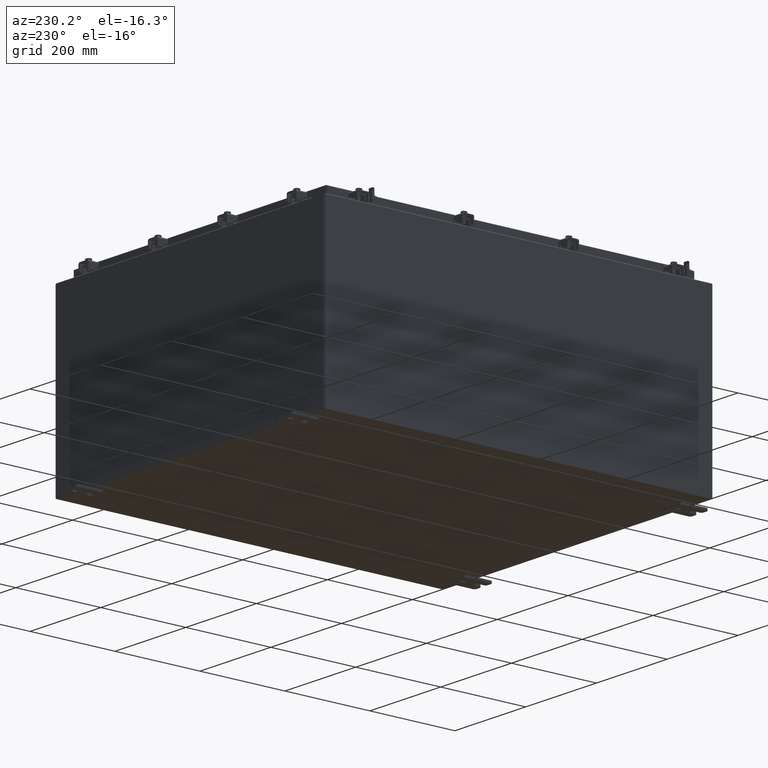
[diagram: clean part render]
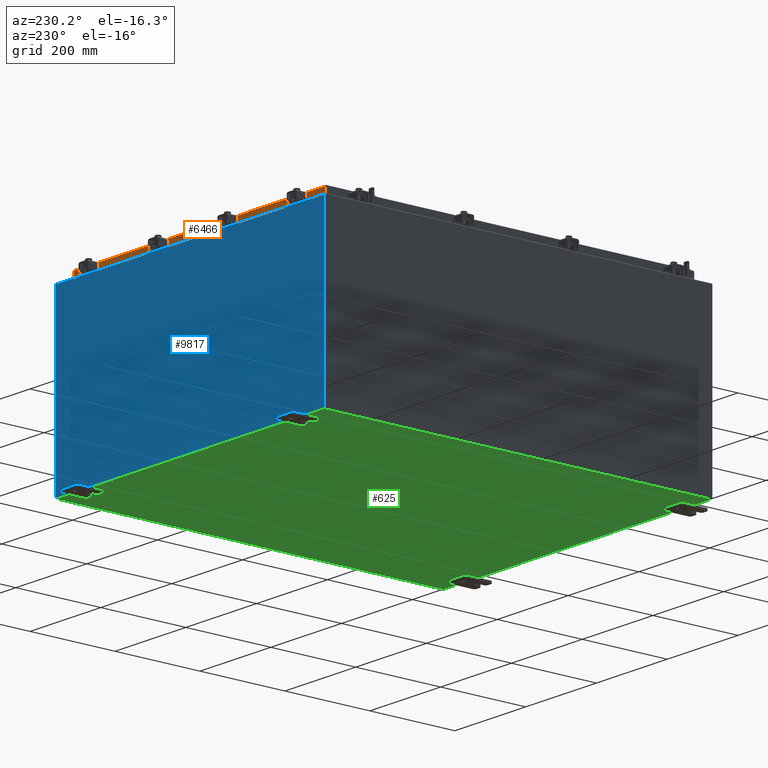
[diagram: same view with three faces highlighted in distinct colors, each labeled with its STEP entity id]
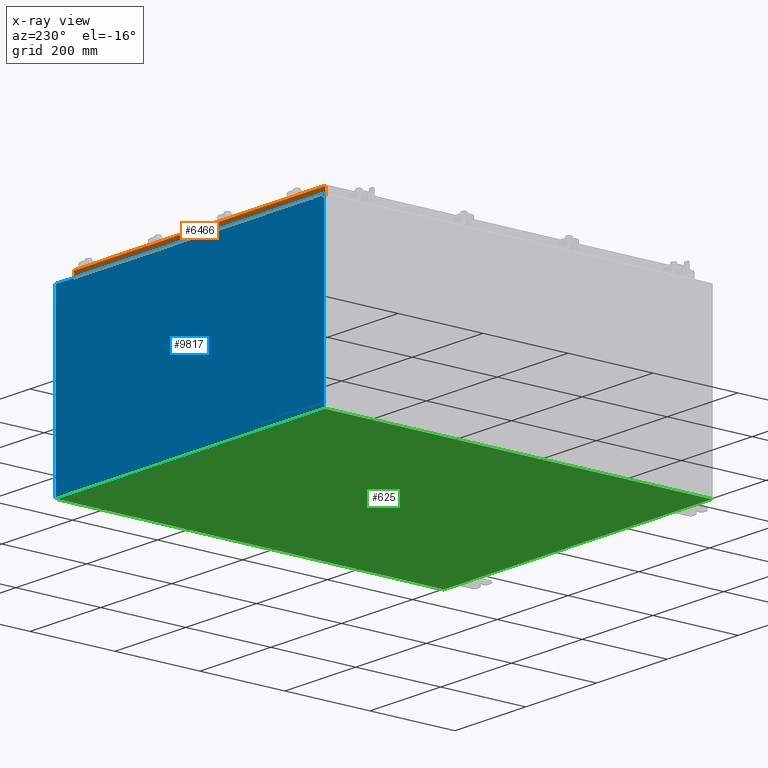
[diagram: x-ray of the same camera — body ghosted, the three highlighted faces saturated]
A machine part, auxiliary view with three faces highlighted in distinct colors.
The next image is the same camera in x-ray (body ghosted, the three faces saturated) — at least one of them is partly hidden behind the body in this view.
Their STEP definitions:

[orange] entity #6466 — the highlighted planar face has unit normal (0, -1, -0).
#280 = VECTOR ( 'NONE', #11008, 39.37007874015748100 ) ;
#816 = AXIS2_PLACEMENT_3D ( 'NONE', #23929, #10814, #24015 ) ;
#1014 = VERTEX_POINT ( 'NONE', #15268 ) ;
#1299 = ORIENTED_EDGE ( 'NONE', *, *, #14997, .F. ) ;
#1421 = CARTESIAN_POINT ( 'NONE',  ( -13.98915786437626700, 17.09399999999999800, -0.08769999999999897300 ) ) ;
#2366 = VECTOR ( 'NONE', #4220, 39.37007874015748100 ) ;
#2660 = EDGE_LOOP ( 'NONE', ( #5427, #9825, #15352, #12015, #10786, #1299 ) ) ;
#3155 = VECTOR ( 'NONE', #19364, 39.37007874015748100 ) ;
#4220 = DIRECTION ( 'NONE',  ( 0.0000000000000000000, 2.818880942772347100E-015, -1.000000000000000000 ) ) ;
#5427 = ORIENTED_EDGE ( 'NONE', *, *, #18040, .F. ) ;
#5476 = VERTEX_POINT ( 'NONE', #24291 ) ;
#6106 = CARTESIAN_POINT ( 'NONE',  ( -14.07799999999999800, 17.09399999999999800, -0.08770000000000007000 ) ) ;
#6466 = ADVANCED_FACE ( 'NONE', ( #14833 ), #16415, .F. ) ;
#6480 = VERTEX_POINT ( 'NONE', #1421 ) ;
#6837 = DIRECTION ( 'NONE',  ( 1.000000000000000000, -0.0000000000000000000, -0.0000000000000000000 ) ) ;
#7252 = CARTESIAN_POINT ( 'NONE',  ( 13.98915786437626500, 17.09399999999999800, -0.08769999999999787700 ) ) ;
#7421 = CARTESIAN_POINT ( 'NONE',  ( -13.23915786437626400, 17.09399999999999800, -0.8500000000000040900 ) ) ;
#7727 = EDGE_CURVE ( 'NONE', #12724, #16868, #23325, .T. ) ;
#7980 = VECTOR ( 'NONE', #19384, 39.37007874015748100 ) ;
#8035 = CARTESIAN_POINT ( 'NONE',  ( 13.98915786437626700, 17.09399999999999800, 4.844676449176206800E-014 ) ) ;
#8809 = LINE ( 'NONE', #6106, #3155 ) ;
#9825 = ORIENTED_EDGE ( 'NONE', *, *, #14541, .T. ) ;
#9967 = CARTESIAN_POINT ( 'NONE',  ( -14.07799999999999800, 17.09399999999999800, -0.8500000000000032000 ) ) ;
#10786 = ORIENTED_EDGE ( 'NONE', *, *, #23349, .F. ) ;
#10814 = DIRECTION ( 'NONE',  ( 3.555540745226020900E-031, -1.000000000000000000, -2.818880942772347100E-015 ) ) ;
#11008 = DIRECTION ( 'NONE',  ( -0.0000000000000000000, 2.818880942772347100E-015, -1.000000000000000000 ) ) ;
#11077 = LINE ( 'NONE', #18968, #21121 ) ;
#12015 = ORIENTED_EDGE ( 'NONE', *, *, #7727, .F. ) ;
#12032 = EDGE_CURVE ( 'NONE', #16868, #1014, #11077, .T. ) ;
#12397 = CARTESIAN_POINT ( 'NONE',  ( 13.23915786437625100, 17.09399999999999800, -0.8500000000000040900 ) ) ;
#12467 = LINE ( 'NONE', #8035, #2366 ) ;
#12724 = VERTEX_POINT ( 'NONE', #7421 ) ;
#13298 = VECTOR ( 'NONE', #6837, 39.37007874015748100 ) ;
#13526 = VERTEX_POINT ( 'NONE', #7252 ) ;
#14541 = EDGE_CURVE ( 'NONE', #13526, #1014, #12467, .T. ) ;
#14833 = FACE_OUTER_BOUND ( 'NONE', #2660, .T. ) ;
#14997 = EDGE_CURVE ( 'NONE', #6480, #5476, #20416, .T. ) ;
#15268 = CARTESIAN_POINT ( 'NONE',  ( 13.98915786437626500, 17.09399999999999800, -0.8499999999999996400 ) ) ;
#15352 = ORIENTED_EDGE ( 'NONE', *, *, #12032, .F. ) ;
#16415 = PLANE ( 'NONE',  #816 ) ;
#16868 = VERTEX_POINT ( 'NONE', #12397 ) ;
#16952 = DIRECTION ( 'NONE',  ( 1.000000000000000000, -4.379057701015054300E-047, 1.261330583805776300E-016 ) ) ;
#18040 = EDGE_CURVE ( 'NONE', #13526, #6480, #8809, .T. ) ;
#18160 = CARTESIAN_POINT ( 'NONE',  ( -13.23915786437626400, 17.09399999999999800, -0.8500000000000040900 ) ) ;
#18633 = LINE ( 'NONE', #9967, #7980 ) ;
#18968 = CARTESIAN_POINT ( 'NONE',  ( -14.07799999999999800, 17.09399999999999800, -0.8500000000000032000 ) ) ;
#19364 = DIRECTION ( 'NONE',  ( -1.000000000000000000, -1.367515671240777000E-031, -7.762034361881699600E-017 ) ) ;
#19384 = DIRECTION ( 'NONE',  ( 1.000000000000000000, -4.379057701015054300E-047, 1.261330583805776300E-016 ) ) ;
#20416 = LINE ( 'NONE', #20423, #280 ) ;
#20423 = CARTESIAN_POINT ( 'NONE',  ( -13.98915786437626900, 17.09399999999999800, -0.07469999999999978000 ) ) ;
#21121 = VECTOR ( 'NONE', #16952, 39.37007874015748100 ) ;
#23325 = LINE ( 'NONE', #18160, #13298 ) ;
#23349 = EDGE_CURVE ( 'NONE', #5476, #12724, #18633, .T. ) ;
#23929 = CARTESIAN_POINT ( 'NONE',  ( -6.077841349889359500E-030, 17.09399999999999800, 4.844676449176206800E-014 ) ) ;
#24015 = DIRECTION ( 'NONE',  ( 0.0000000000000000000, 2.818880942772347100E-015, -1.000000000000000000 ) ) ;
#24291 = CARTESIAN_POINT ( 'NONE',  ( -13.98915786437626900, 17.09399999999999800, -0.8500000000000032000 ) ) ;

[blue] entity #9817 — the highlighted planar face has unit normal (0, -1, 0).
#241 = DIRECTION ( 'NONE',  ( 1.000000000000000000, 0.0000000000000000000, -7.321388497823864400E-017 ) ) ;
#479 = FACE_OUTER_BOUND ( 'NONE', #3858, .T. ) ;
#799 = VERTEX_POINT ( 'NONE', #14862 ) ;
#912 = ORIENTED_EDGE ( 'NONE', *, *, #14284, .T. ) ;
#1084 = LINE ( 'NONE', #6822, #5539 ) ;
#1858 = CARTESIAN_POINT ( 'NONE',  ( -13.63719999999999600, 3.756290991288361700E-016, 7.912300000000006300 ) ) ;
#2027 = VECTOR ( 'NONE', #3731, 39.37007874015748100 ) ;
#3213 = VERTEX_POINT ( 'NONE', #8504 ) ;
#3731 = DIRECTION ( 'NONE',  ( 1.000000000000000000, 0.0000000000000000000, -7.321388497823864400E-017 ) ) ;
#3765 = VECTOR ( 'NONE', #5669, 39.37007874015748100 ) ;
#3858 = EDGE_LOOP ( 'NONE', ( #4048, #6245, #13165, #20895, #16104, #5138, #11710, #16668, #15602, #912, #14785, #18961 ) ) ;
#3874 = CIRCLE ( 'NONE', #5739, 0.01867499999999949400 ) ;
#4048 = ORIENTED_EDGE ( 'NONE', *, *, #8589, .F. ) ;
#4402 = EDGE_CURVE ( 'NONE', #12751, #17640, #20709, .T. ) ;
#4491 = PLANE ( 'NONE',  #9010 ) ;
#5138 = ORIENTED_EDGE ( 'NONE', *, *, #5577, .F. ) ;
#5347 = VECTOR ( 'NONE', #15159, 39.37007874015748100 ) ;
#5512 = CARTESIAN_POINT ( 'NONE',  ( -13.65587499999999600, 0.0000000000000000000, 7.874949999999999200 ) ) ;
#5539 = VECTOR ( 'NONE', #18146, 39.37007874015748100 ) ;
#5577 = EDGE_CURVE ( 'NONE', #13333, #19749, #12084, .T. ) ;
#5669 = DIRECTION ( 'NONE',  ( -0.0000000000000000000, -0.0000000000000000000, 1.000000000000000000 ) ) ;
#5739 = AXIS2_PLACEMENT_3D ( 'NONE', #5512, #18768, #7413 ) ;
#6110 = CARTESIAN_POINT ( 'NONE',  ( 13.65587500000000200, 0.0000000000000000000, 7.874949999999999200 ) ) ;
#6245 = ORIENTED_EDGE ( 'NONE', *, *, #22517, .F. ) ;
#6391 = DIRECTION ( 'NONE',  ( 0.0000000000000000000, -1.000000000000000000, 0.0000000000000000000 ) ) ;
#6579 = EDGE_CURVE ( 'NONE', #19749, #7143, #22499, .T. ) ;
#6662 = LINE ( 'NONE', #7181, #21159 ) ;
#6663 = EDGE_CURVE ( 'NONE', #13893, #799, #21319, .T. ) ;
#6822 = CARTESIAN_POINT ( 'NONE',  ( -13.67454999999999500, -0.0000000000000000000, 0.0000000000000000000 ) ) ;
#6863 = CARTESIAN_POINT ( 'NONE',  ( 13.63720000000000400, 0.0000000000000000000, 7.912299999999999200 ) ) ;
#7056 = LINE ( 'NONE', #15065, #2027 ) ;
#7143 = VERTEX_POINT ( 'NONE', #6863 ) ;
#7164 = CARTESIAN_POINT ( 'NONE',  ( -13.67454999999999500, 0.0000000000000000000, 7.874949999999999200 ) ) ;
#7181 = CARTESIAN_POINT ( 'NONE',  ( -13.63719999999999800, 3.756290991288361700E-016, 7.912300000000006300 ) ) ;
#7409 = VECTOR ( 'NONE', #9072, 39.37007874015748100 ) ;
#7413 = DIRECTION ( 'NONE',  ( 0.0000000000000000000, 0.0000000000000000000, -1.000000000000000000 ) ) ;
#7461 = EDGE_CURVE ( 'NONE', #18448, #13333, #10359, .T. ) ;
#8030 = DIRECTION ( 'NONE',  ( 0.0000000000000000000, 0.0000000000000000000, -1.000000000000000000 ) ) ;
#8201 = LINE ( 'NONE', #19002, #3765 ) ;
#8481 = DIRECTION ( 'NONE',  ( 0.0000000000000000000, 0.0000000000000000000, -1.000000000000000000 ) ) ;
#8504 = CARTESIAN_POINT ( 'NONE',  ( -14.92529999999999800, 0.0000000000000000000, 7.925300000000000000 ) ) ;
#8527 = CARTESIAN_POINT ( 'NONE',  ( 13.67455000000000200, 0.0000000000000000000, 7.874949999999999200 ) ) ;
#8589 = EDGE_CURVE ( 'NONE', #18472, #24063, #1084, .T. ) ;
#8746 = EDGE_CURVE ( 'NONE', #17846, #3213, #8201, .T. ) ;
#8883 = CARTESIAN_POINT ( 'NONE',  ( -13.63719999999999600, -0.0000000000000000000, 7.874949999999999200 ) ) ;
#9010 = AXIS2_PLACEMENT_3D ( 'NONE', #17721, #6391, #19638 ) ;
#9072 = DIRECTION ( 'NONE',  ( 0.0000000000000000000, 0.0000000000000000000, 1.000000000000000000 ) ) ;
#9474 = CARTESIAN_POINT ( 'NONE',  ( -14.92529999999999800, 0.0000000000000000000, -7.925300000000000000 ) ) ;
#9774 = VECTOR ( 'NONE', #9777, 39.37007874015748100 ) ;
#9777 = DIRECTION ( 'NONE',  ( -4.340572780400193600E-014, 0.0000000000000000000, -1.000000000000000000 ) ) ;
#9817 = ADVANCED_FACE ( 'NONE', ( #479 ), #4491, .F. ) ;
#10359 = LINE ( 'NONE', #13561, #9774 ) ;
#11263 = VECTOR ( 'NONE', #8481, 39.37007874015748100 ) ;
#11394 = CARTESIAN_POINT ( 'NONE',  ( 14.92530000000000200, 0.0000000000000000000, 7.925299999999997300 ) ) ;
#11539 = VECTOR ( 'NONE', #241, 39.37007874015748100 ) ;
#11630 = AXIS2_PLACEMENT_3D ( 'NONE', #6110, #19371, #8030 ) ;
#11710 = ORIENTED_EDGE ( 'NONE', *, *, #7461, .F. ) ;
#12084 = CIRCLE ( 'NONE', #11630, 0.01867499999999949400 ) ;
#12251 = CARTESIAN_POINT ( 'NONE',  ( -13.67454999999999500, 0.0000000000000000000, 7.925300000000000000 ) ) ;
#12751 = VERTEX_POINT ( 'NONE', #1858 ) ;
#13044 = CARTESIAN_POINT ( 'NONE',  ( 13.63720000000000400, 0.0000000000000000000, 0.0000000000000000000 ) ) ;
#13165 = ORIENTED_EDGE ( 'NONE', *, *, #4402, .F. ) ;
#13256 = CARTESIAN_POINT ( 'NONE',  ( -14.92529999999999800, 0.0000000000000000000, -7.925300000000000000 ) ) ;
#13333 = VERTEX_POINT ( 'NONE', #8527 ) ;
#13410 = CARTESIAN_POINT ( 'NONE',  ( 13.63720000000000400, 0.0000000000000000000, 7.874949999999999200 ) ) ;
#13500 = CARTESIAN_POINT ( 'NONE',  ( -14.92529999999999800, 0.0000000000000000000, 7.925300000000000000 ) ) ;
#13561 = CARTESIAN_POINT ( 'NONE',  ( 13.67454999999966100, -0.0000000000000000000, -5.935537951421999000E-013 ) ) ;
#13893 = VERTEX_POINT ( 'NONE', #14040 ) ;
#14040 = CARTESIAN_POINT ( 'NONE',  ( 14.92530000000000200, 0.0000000000000000000, 7.925299999999997300 ) ) ;
#14284 = EDGE_CURVE ( 'NONE', #799, #17846, #20438, .T. ) ;
#14636 = CARTESIAN_POINT ( 'NONE',  ( 13.67455000000000400, 0.0000000000000000000, 7.925299999999997300 ) ) ;
#14785 = ORIENTED_EDGE ( 'NONE', *, *, #8746, .T. ) ;
#14862 = CARTESIAN_POINT ( 'NONE',  ( 14.92530000000000200, 0.0000000000000000000, -7.925300000000000000 ) ) ;
#15065 = CARTESIAN_POINT ( 'NONE',  ( -14.92529999999999800, 0.0000000000000000000, 7.925300000000000000 ) ) ;
#15159 = DIRECTION ( 'NONE',  ( -1.000000000000000000, -0.0000000000000000000, -0.0000000000000000000 ) ) ;
#15602 = ORIENTED_EDGE ( 'NONE', *, *, #6663, .T. ) ;
#15945 = LINE ( 'NONE', #13500, #11539 ) ;
#16104 = ORIENTED_EDGE ( 'NONE', *, *, #6579, .F. ) ;
#16668 = ORIENTED_EDGE ( 'NONE', *, *, #23739, .T. ) ;
#17640 = VERTEX_POINT ( 'NONE', #8883 ) ;
#17721 = CARTESIAN_POINT ( 'NONE',  ( 0.0000000000000000000, 0.0000000000000000000, 0.0000000000000000000 ) ) ;
#17846 = VERTEX_POINT ( 'NONE', #13256 ) ;
#18146 = DIRECTION ( 'NONE',  ( 0.0000000000000000000, 0.0000000000000000000, 1.000000000000000000 ) ) ;
#18448 = VERTEX_POINT ( 'NONE', #14636 ) ;
#18472 = VERTEX_POINT ( 'NONE', #7164 ) ;
#18526 = DIRECTION ( 'NONE',  ( 1.000000000000000000, 0.0000000000000000000, 0.0000000000000000000 ) ) ;
#18768 = DIRECTION ( 'NONE',  ( -0.0000000000000000000, 1.000000000000000000, -0.0000000000000000000 ) ) ;
#18961 = ORIENTED_EDGE ( 'NONE', *, *, #23778, .T. ) ;
#19002 = CARTESIAN_POINT ( 'NONE',  ( -14.92529999999999800, 0.0000000000000000000, 7.925300000000000000 ) ) ;
#19371 = DIRECTION ( 'NONE',  ( -0.0000000000000000000, 1.000000000000000000, -0.0000000000000000000 ) ) ;
#19487 = EDGE_CURVE ( 'NONE', #12751, #7143, #6662, .T. ) ;
#19638 = DIRECTION ( 'NONE',  ( 0.0000000000000000000, -0.0000000000000000000, -1.000000000000000000 ) ) ;
#19749 = VERTEX_POINT ( 'NONE', #13410 ) ;
#19815 = CARTESIAN_POINT ( 'NONE',  ( -13.63719999999999600, -0.0000000000000000000, 0.0000000000000000000 ) ) ;
#20438 = LINE ( 'NONE', #9474, #5347 ) ;
#20709 = LINE ( 'NONE', #19815, #11263 ) ;
#20734 = VECTOR ( 'NONE', #20795, 39.37007874015748100 ) ;
#20795 = DIRECTION ( 'NONE',  ( 0.0000000000000000000, 0.0000000000000000000, -1.000000000000000000 ) ) ;
#20895 = ORIENTED_EDGE ( 'NONE', *, *, #19487, .T. ) ;
#21159 = VECTOR ( 'NONE', #18526, 39.37007874015748100 ) ;
#21319 = LINE ( 'NONE', #11394, #20734 ) ;
#22499 = LINE ( 'NONE', #13044, #7409 ) ;
#22517 = EDGE_CURVE ( 'NONE', #17640, #18472, #3874, .T. ) ;
#23739 = EDGE_CURVE ( 'NONE', #18448, #13893, #7056, .T. ) ;
#23778 = EDGE_CURVE ( 'NONE', #3213, #24063, #15945, .T. ) ;
#24063 = VERTEX_POINT ( 'NONE', #12251 ) ;

[green] entity #625 — the highlighted planar face has unit normal (0, 0, -1).
#355 = DIRECTION ( 'NONE',  ( 1.000000000000000000, 0.0000000000000000000, 0.0000000000000000000 ) ) ;
#625 = ADVANCED_FACE ( 'NONE', ( #13003 ), #6249, .T. ) ;
#775 = VERTEX_POINT ( 'NONE', #21058 ) ;
#1126 = EDGE_CURVE ( 'NONE', #11496, #775, #23597, .T. ) ;
#1291 = CARTESIAN_POINT ( 'NONE',  ( -14.91230000000000200, -17.92530000000000000, -0.07469999999999994700 ) ) ;
#3115 = VERTEX_POINT ( 'NONE', #14996 ) ;
#3342 = ORIENTED_EDGE ( 'NONE', *, *, #16570, .F. ) ;
#4171 = CARTESIAN_POINT ( 'NONE',  ( -15.00000000000000400, -17.92530000000000000, -0.07470000000000000300 ) ) ;
#6237 = EDGE_LOOP ( 'NONE', ( #21909, #10097, #3342, #7810 ) ) ;
#6249 = PLANE ( 'NONE',  #9019 ) ;
#6277 = CARTESIAN_POINT ( 'NONE',  ( 14.91229999999999800, 17.92530000000000000, -0.07470000000000251400 ) ) ;
#7683 = CARTESIAN_POINT ( 'NONE',  ( -15.00000000000000400, 17.92530000000000000, -0.07470000000000000300 ) ) ;
#7810 = ORIENTED_EDGE ( 'NONE', *, *, #9883, .T. ) ;
#7822 = CARTESIAN_POINT ( 'NONE',  ( -14.91230000000000200, -17.92530000000000000, -0.07469999999999994700 ) ) ;
#8538 = VECTOR ( 'NONE', #355, 39.37007874015748100 ) ;
#9019 = AXIS2_PLACEMENT_3D ( 'NONE', #13709, #11827, #15764 ) ;
#9883 = EDGE_CURVE ( 'NONE', #16076, #775, #13822, .T. ) ;
#10097 = ORIENTED_EDGE ( 'NONE', *, *, #12559, .T. ) ;
#11496 = VERTEX_POINT ( 'NONE', #7822 ) ;
#11827 = DIRECTION ( 'NONE',  ( 0.0000000000000000000, 0.0000000000000000000, -1.000000000000000000 ) ) ;
#12242 = VECTOR ( 'NONE', #18346, 39.37007874015748100 ) ;
#12559 = EDGE_CURVE ( 'NONE', #11496, #3115, #17239, .T. ) ;
#12648 = VECTOR ( 'NONE', #17962, 39.37007874015748100 ) ;
#13003 = FACE_OUTER_BOUND ( 'NONE', #6237, .T. ) ;
#13008 = LINE ( 'NONE', #7683, #17419 ) ;
#13709 = CARTESIAN_POINT ( 'NONE',  ( 0.0000000000000000000, 0.0000000000000000000, -0.07470000000000000300 ) ) ;
#13822 = LINE ( 'NONE', #21684, #12648 ) ;
#14996 = CARTESIAN_POINT ( 'NONE',  ( -14.91230000000000200, 17.92530000000000000, -0.07470000000000000300 ) ) ;
#15294 = DIRECTION ( 'NONE',  ( -1.000000000000000000, -0.0000000000000000000, -0.0000000000000000000 ) ) ;
#15764 = DIRECTION ( 'NONE',  ( -1.000000000000000000, 0.0000000000000000000, -0.0000000000000000000 ) ) ;
#16076 = VERTEX_POINT ( 'NONE', #6277 ) ;
#16570 = EDGE_CURVE ( 'NONE', #16076, #3115, #13008, .T. ) ;
#17239 = LINE ( 'NONE', #1291, #12242 ) ;
#17419 = VECTOR ( 'NONE', #15294, 39.37007874015748100 ) ;
#17962 = DIRECTION ( 'NONE',  ( -0.0000000000000000000, -1.000000000000000000, 8.208677865577646300E-017 ) ) ;
#18346 = DIRECTION ( 'NONE',  ( -0.0000000000000000000, 1.000000000000000000, -0.0000000000000000000 ) ) ;
#21058 = CARTESIAN_POINT ( 'NONE',  ( 14.91229999999999800, -17.92530000000000000, -0.07470000000000000300 ) ) ;
#21684 = CARTESIAN_POINT ( 'NONE',  ( 14.91229999999999800, 17.92530000000000000, -0.07470000000000251400 ) ) ;
#21909 = ORIENTED_EDGE ( 'NONE', *, *, #1126, .F. ) ;
#23597 = LINE ( 'NONE', #4171, #8538 ) ;